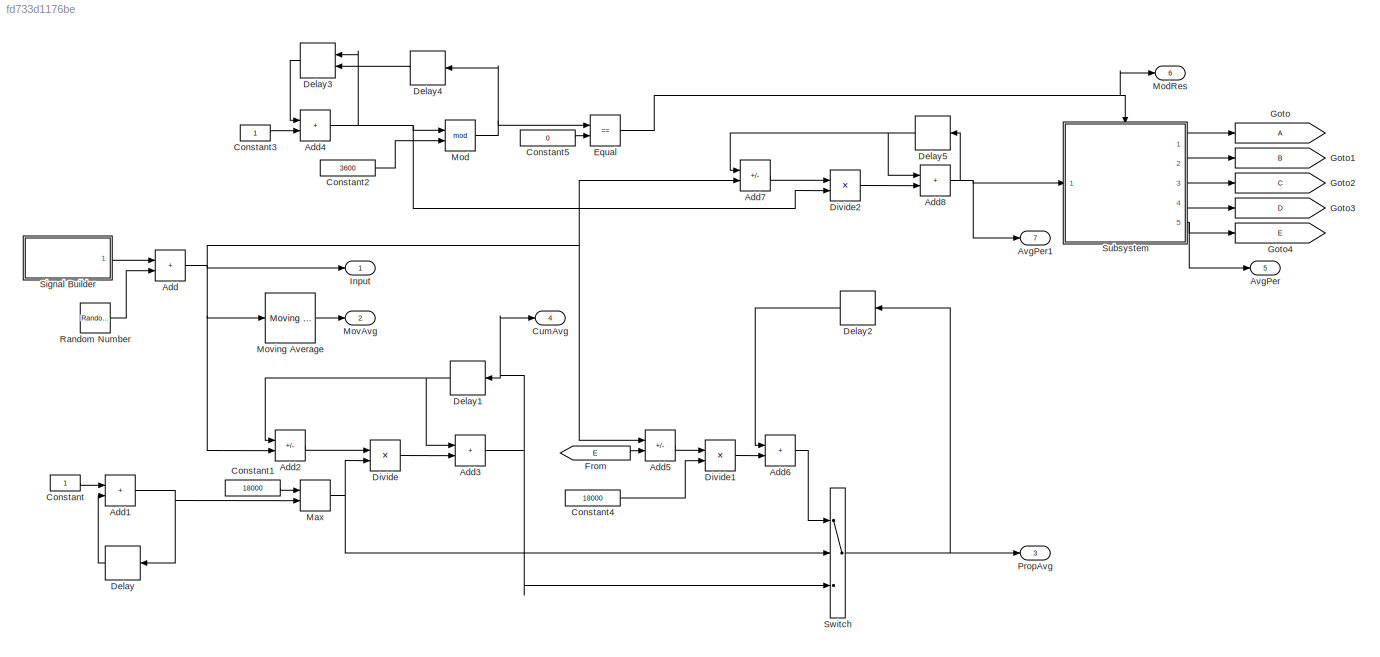
MODEL slx_fd733d1176be
KIND model
CONFIG AbsTol = auto
CONFIG EnableMultiTasking = off
CONFIG FixedStep = 0.001
CONFIG MaxStep = auto
CONFIG MinStep = auto
CONFIG RelTol = 1e-3
CONFIG SampleTimeConstraint = Unconstrained
CONFIG SolverName = FixedStepAuto
CONFIG StartTime = 0.0
CONFIG StopTime = 100
BLOCK [Sum] Add
  IconShape = rectangular
  Ports = [2, 1]
BLOCK [Sum] Add1
  IconShape = rectangular
  Ports = [2, 1]
BLOCK [Sum] Add2
  IconShape = rectangular
  Inputs = -+
  Ports = [2, 1]
BLOCK [Sum] Add3
  IconShape = rectangular
  Ports = [2, 1]
BLOCK [Sum] Add4
  IconShape = rectangular
  Ports = [2, 1]
BLOCK [Sum] Add5
  IconShape = rectangular
  Inputs = +-
  Ports = [2, 1]
BLOCK [Sum] Add6
  IconShape = rectangular
  Ports = [2, 1]
BLOCK [Sum] Add7
  IconShape = rectangular
  Inputs = -+
  Ports = [2, 1]
BLOCK [Sum] Add8
  IconShape = rectangular
  Ports = [2, 1]
BLOCK [Outport] AvgPer
  Port = 5
BLOCK [Outport] AvgPer1
  Port = 7
BLOCK [Constant] Constant
BLOCK [Constant] Constant1
  Value = 18000
BLOCK [Constant] Constant2
  Value = 3600
BLOCK [Constant] Constant3
BLOCK [Constant] Constant4
  Value = 18000
BLOCK [Constant] Constant5
  Value = 0
BLOCK [Outport] CumAvg
  Port = 4
BLOCK [Delay] Delay
  DelayLength = 1
  InputPortMap = u0
  Ports = [1, 1]
BLOCK [Delay] Delay1
  DelayLength = 1
  InputPortMap = u0
  Ports = [1, 1]
BLOCK [Delay] Delay2
  DelayLength = 1
  InputPortMap = u0
  Ports = [1, 1]
BLOCK [Delay] Delay3
  DelayLength = 1
  ExternalReset = Rising
  InputPortMap = u0,r5
  Ports = [2, 1]
BLOCK [Delay] Delay4
  DelayLength = 1
  InputPortMap = u0
  Ports = [1, 1]
BLOCK [Delay] Delay5
  DelayLength = 1
  InputPortMap = u0
  Ports = [1, 1]
BLOCK [Product] Divide
  Inputs = */
  Ports = [2, 1]
BLOCK [Product] Divide1
  Inputs = */
  Ports = [2, 1]
BLOCK [Product] Divide2
  Inputs = */
  Ports = [2, 1]
BLOCK [RelationalOperator] Equal
  InputSameDT = off
  Operator = ==
  OutDataTypeStr = boolean
  Ports = [2, 1]
  RndMeth = Simplest
BLOCK [From] From
  GotoTag = E
BLOCK [Goto] Goto
BLOCK [Goto] Goto1
  GotoTag = B
BLOCK [Goto] Goto2
  GotoTag = C
BLOCK [Goto] Goto3
  GotoTag = D
BLOCK [Goto] Goto4
  GotoTag = E
BLOCK [Outport] Input
BLOCK [MinMax] Max
  Function = max
  Inputs = 2
  Ports = [2, 1]
BLOCK [Math] Mod
  Operator = mod
  Ports = [2, 1]
BLOCK [Outport] ModRes
  Port = 6
BLOCK [Outport] MovAvg
  Port = 2
BLOCK [Reference] Moving Average  REF=dspstat3/Moving
Average
  Ports = [1, 1]
  SourceBlock = dspstat3/Moving\nAverage
  SourceProductBaseCode = DS
  SourceType = dsp.simulink.MovingAverage
BLOCK [Outport] PropAvg
  Port = 3
BLOCK [RandomNumber] Random Number
  Mean = 5
  SampleTime = 0.001
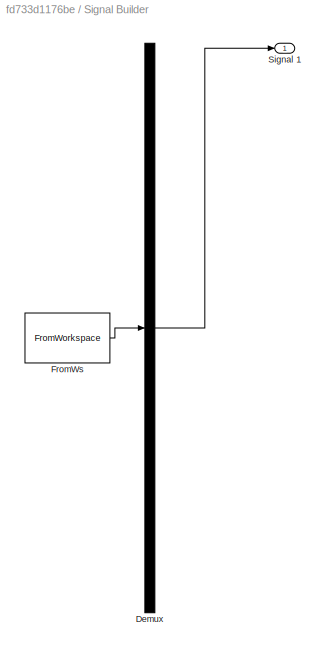
BLOCK [SubSystem] Signal Builder
  ClipboardFcn = sigbuilder_block('clipboard');
  CloseFcn = sigbuilder_block('close');
  ContinueFcn = sigbuilder_block('continue');
  CopyFcn = sigbuilder_block('copy');
  DeleteFcn = sigbuilder_block('delete');
  LoadFcn = sigbuilder_block('load');
  MaskHideContents = on
  ModelCloseFcn = sigbuilder_block('modelClose');
  NameChangeFcn = sigbuilder_block('namechange');
  OpenFcn = sigbuilder_block('open',[6 36 1428 675.75 ]);
  PauseFcn = sigbuilder_block('pause');
  Ports = [0, 1]
  PreSaveFcn = sigbuilder_block('preSave');
  RequestExecContextInheritance = off
  StartFcn = sigbuilder_block('start');
  StopFcn = sigbuilder_block('stop');
  Tag = STV Subsys
BLOCK [Demux] Signal Builder/Demux
  DisplayOption = none
  Outputs = 1
  Ports = [1, 1]
  Tag = STV Demux
BLOCK [FromWorkspace] Signal Builder/FromWs
  Tag = STV FromWs
  VariableName = tuvar
BLOCK [Outport] Signal Builder/Signal 1
  Tag = STV Outport
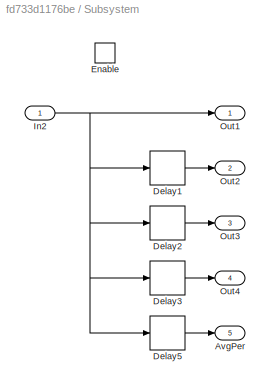
BLOCK [SubSystem] Subsystem
  Ports = [1, 5, 1]
  RequestExecContextInheritance = off
BLOCK [Outport] Subsystem/AvgPer
  Port = 5
BLOCK [Delay] Subsystem/Delay1
  DelayLength = 1
  InputPortMap = u0
  Ports = [1, 1]
BLOCK [Delay] Subsystem/Delay2
  InputPortMap = u0
  Ports = [1, 1]
BLOCK [Delay] Subsystem/Delay3
  DelayLength = 3
  InputPortMap = u0
  Ports = [1, 1]
BLOCK [Delay] Subsystem/Delay5
  DelayLength = 4
  InputPortMap = u0
  Ports = [1, 1]
BLOCK [EnablePort] Subsystem/Enable
  Ports = []
BLOCK [Inport] Subsystem/In2
BLOCK [Outport] Subsystem/Out1
BLOCK [Outport] Subsystem/Out2
  Port = 2
BLOCK [Outport] Subsystem/Out3
  Port = 3
BLOCK [Outport] Subsystem/Out4
  Port = 4
BLOCK [Switch] Switch
  Criteria = u2 > Threshold
  InputSameDT = off
  SaturateOnIntegerOverflow = off
NET Add1:1 -> Delay:1, Max:2
LINE Add2:1 -> Divide:1
NET Add3:1 -> CumAvg:1, Delay1:1, Switch:3
NET Add4:1 -> Delay3:1, Divide2:2, Mod:1
LINE Add5:1 -> Divide1:1
LINE Add6:1 -> Switch:1
LINE Add7:1 -> Divide2:1
NET Add8:1 -> AvgPer1:1, Delay5:1, Subsystem:1
NET Add:1 -> Add2:2, Add5:1, Add7:2, Input:1, Moving Average:1
LINE Constant1:1 -> Max:1
LINE Constant2:1 -> Mod:2
LINE Constant3:1 -> Add4:2
LINE Constant4:1 -> Divide1:2
LINE Constant5:1 -> Equal:2
LINE Constant:1 -> Add1:1
NET Delay1:1 -> Add2:1, Add3:1
LINE Delay2:1 -> Add6:1
LINE Delay3:1 -> Add4:1
LINE Delay4:1 -> Delay3:2
NET Delay5:1 -> Add7:1, Add8:1
LINE Delay:1 -> Add1:2
LINE Divide1:1 -> Add6:2
LINE Divide2:1 -> Add8:2
LINE Divide:1 -> Add3:2
NET Equal:1 -> ModRes:1, Subsystem:enable
LINE From:1 -> Add5:2
NET Max:1 -> Divide:2, Switch:2
NET Mod:1 -> Delay4:1, Equal:1
LINE Moving Average:1 -> MovAvg:1
LINE Random Number:1 -> Add:2
LINE Signal Builder:1 -> Add:1
LINE Subsystem/Delay1:1 -> Subsystem/Out2:1
LINE Subsystem/Delay2:1 -> Subsystem/Out3:1
LINE Subsystem/Delay3:1 -> Subsystem/Out4:1
LINE Subsystem/Delay5:1 -> Subsystem/AvgPer:1
NET Subsystem/In2:1 -> Subsystem/Delay1:1, Subsystem/Delay2:1, Subsystem/Delay3:1, Subsystem/Delay5:1, Subsystem/Out1:1
LINE Subsystem:1 -> Goto:1
LINE Subsystem:2 -> Goto1:1
LINE Subsystem:3 -> Goto2:1
LINE Subsystem:4 -> Goto3:1
NET Subsystem:5 -> AvgPer:1, Goto4:1
NET Switch:1 -> Delay2:1, PropAvg:1
note: NET lines group one-source signal fan-out (src -> all destinations, sorted); 1:1 wires keep LINE
